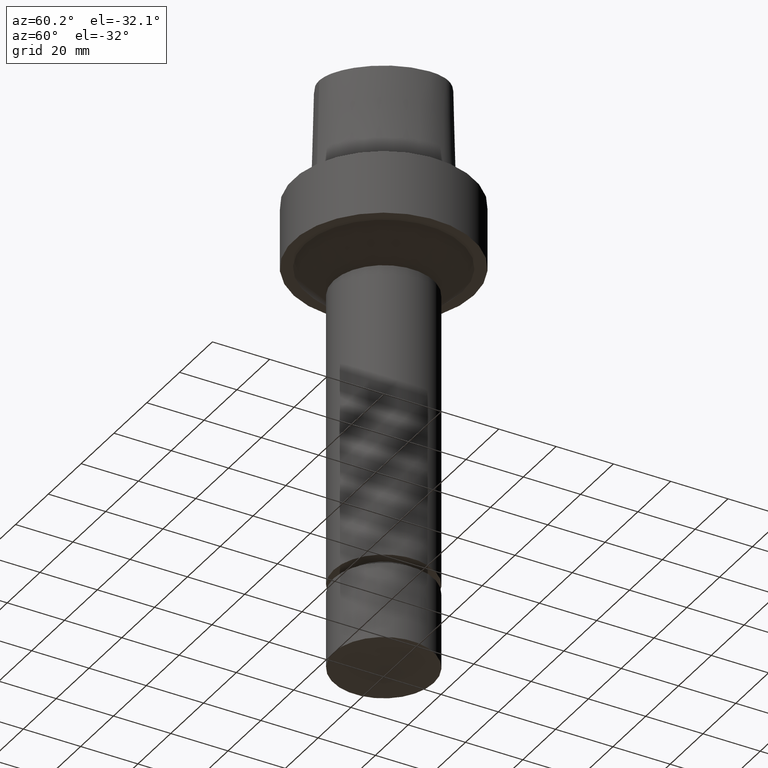
[diagram: clean part render]
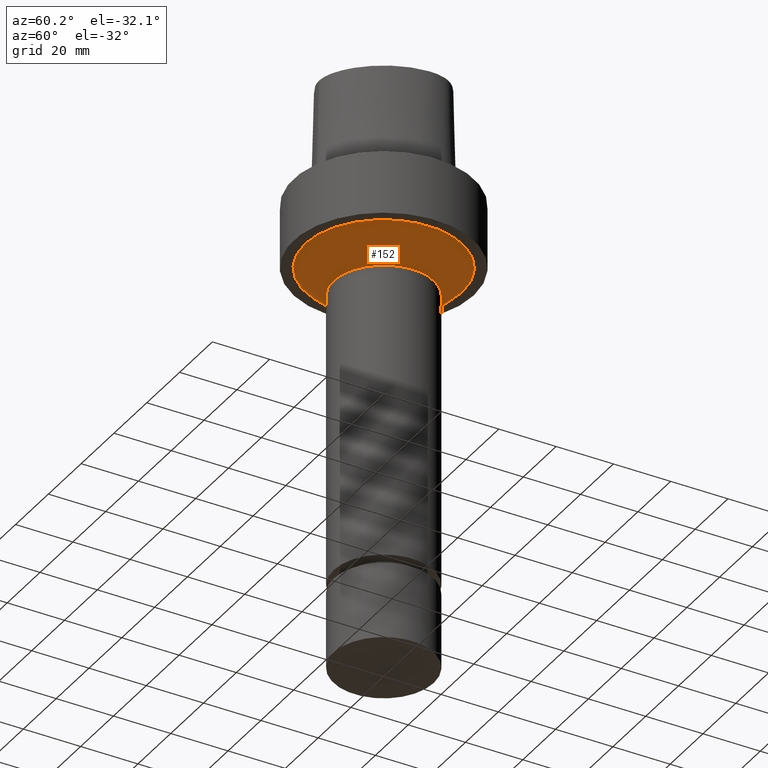
[diagram: same view with one face highlighted and labeled with its STEP entity id]
A machine part, auxiliary view. The second image highlights one B-rep face of the part: STEP entity #152.
In plain terms, the highlighted conical surface has half-angle 45 deg.
Its self-contained STEP definition (entity closure, byte-faithful):
#98=EDGE_CURVE('Unnamed[1]',#231,#231,#232,.T.);
#149=EDGE_CURVE('Unnamed[1]',#302,#302,#303,.T.);
#152=ADVANCED_FACE('Unnamed[1]',(#306,#307),#308,.T.);
#231=VERTEX_POINT('',#399);
#232=CIRCLE('',#400,27.4999999999996);
#302=VERTEX_POINT('',#607);
#303=CIRCLE('',#608,17.4999999999999);
#306=FACE_BOUND('',#612,.T.);
#307=FACE_BOUND('',#613,.T.);
#308=CONICAL_SURFACE('',#614,22.4999999999998,0.785398163397431);
#399=CARTESIAN_POINT('',(1.34711147906211E-015,27.4999999999996,-22.0000000000003));
#400=AXIS2_PLACEMENT_3D('',#777,#778,#779);
#607=CARTESIAN_POINT('',(1.95943487863578E-015,17.4999999999999,-32.0000000000002));
#608=AXIS2_PLACEMENT_3D('',#846,#847,#848);
#612=EDGE_LOOP('',(#850));
#613=EDGE_LOOP('',(#851));
#614=AXIS2_PLACEMENT_3D('',#852,#853,#854);
#777=CARTESIAN_POINT('',(1.34711147906211E-015,2.69422295812421E-015,-22.0000000000003));
#778=DIRECTION('',(6.12323399573677E-017,1.22464679914735E-016,-1.0));
#779=DIRECTION('',(-1.23259516440783E-032,1.0,1.22464679914735E-016));
#846=CARTESIAN_POINT('',(1.95943487863578E-015,3.91886975727156E-015,-32.0000000000003));
#847=DIRECTION('',(6.12323399573677E-017,1.22464679914735E-016,-1.0));
#848=DIRECTION('',(-1.23259516440783E-032,1.0,1.22464679914735E-016));
#850=ORIENTED_EDGE('',*,*,#149,.F.);
#851=ORIENTED_EDGE('',*,*,#98,.T.);
#852=CARTESIAN_POINT('',(1.65327317884894E-015,3.30654635769788E-015,-27.0000000000003));
#853=DIRECTION('',(-6.12323399573677E-017,-1.22464679914735E-016,1.0));
#854=DIRECTION('',(-1.23259516440783E-032,1.0,1.22464679914735E-016));